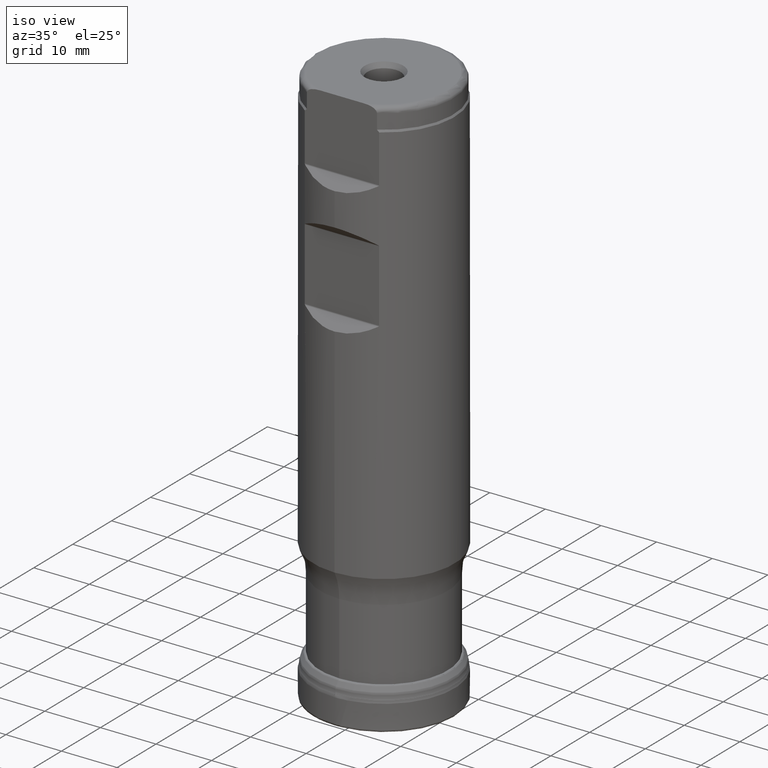
[diagram: clean part render]
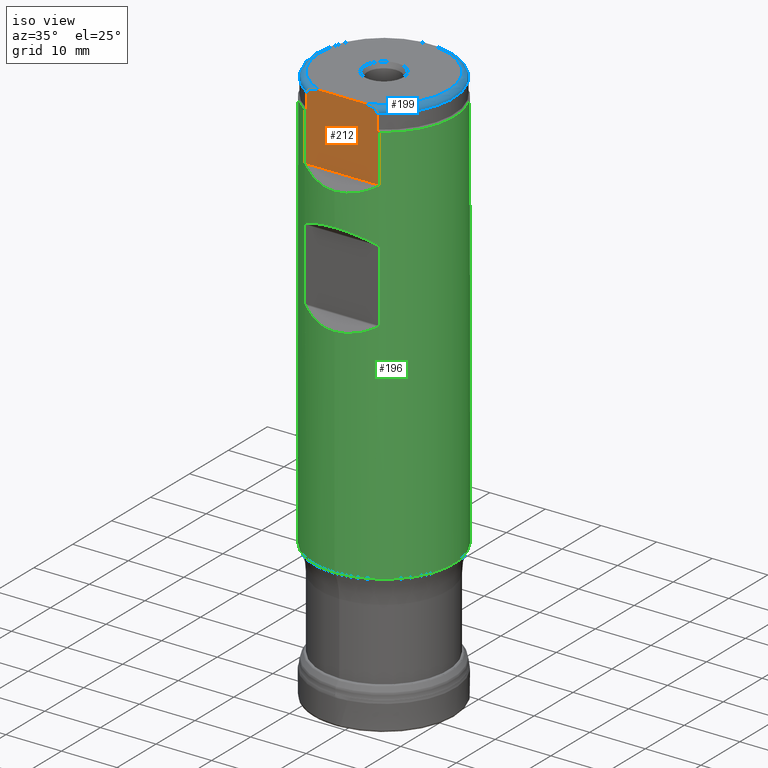
[diagram: same view with three faces highlighted in distinct colors, each labeled with its STEP entity id]
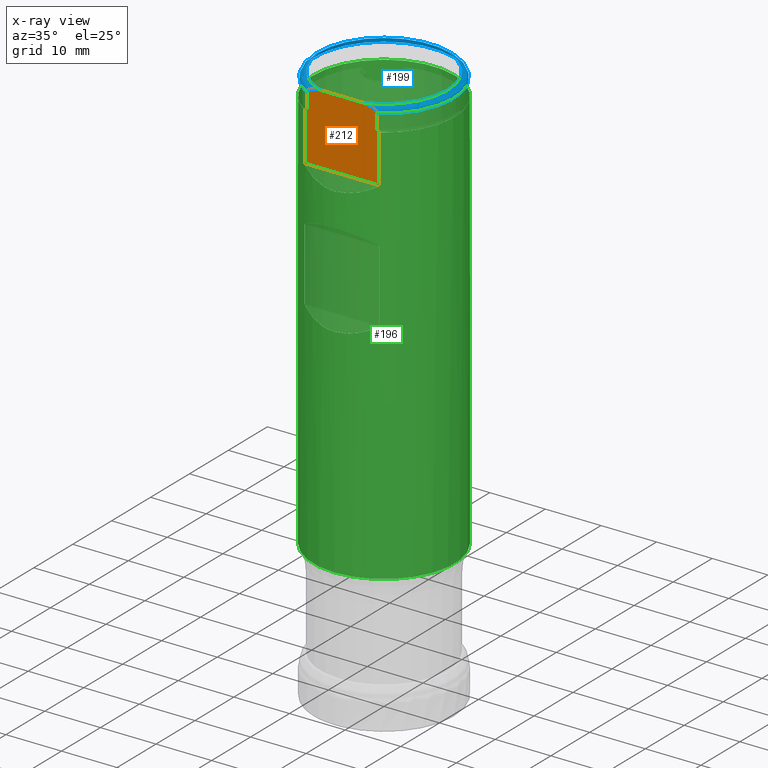
[diagram: x-ray of the same camera — body ghosted, the three highlighted faces saturated]
A machine part, iso view with three faces highlighted in distinct colors.
The next image is the same camera in x-ray (body ghosted, the three faces saturated) — at least one of them is partly hidden behind the body in this view.
Their STEP definitions:

[orange] entity #212 — the highlighted planar face has unit normal (0, 1, -0).
#164=FACE_OUTER_BOUND('',#408,.T.);
#212=ADVANCED_FACE('',(#164),#244,.F.);
#244=PLANE('',#857);
#249=LINE('',#1289,#268);
#250=LINE('',#1316,#269);
#251=LINE('',#1321,#270);
#254=LINE('',#1431,#273);
#255=LINE('',#1435,#274);
#256=LINE('',#1478,#275);
#268=VECTOR('',#892,1.);
#269=VECTOR('',#925,1.);
#270=VECTOR('',#928,1.);
#273=VECTOR('',#945,1.);
#274=VECTOR('',#948,1.);
#275=VECTOR('',#987,1.);
#408=EDGE_LOOP('',(#520,#521,#522,#523,#524,#525,#526,#527,#528,#529));
#520=ORIENTED_EDGE('',*,*,#667,.T.);
#521=ORIENTED_EDGE('',*,*,#695,.T.);
#522=ORIENTED_EDGE('',*,*,#669,.T.);
#523=ORIENTED_EDGE('',*,*,#682,.T.);
#524=ORIENTED_EDGE('',*,*,#687,.T.);
#525=ORIENTED_EDGE('',*,*,#689,.T.);
#526=ORIENTED_EDGE('',*,*,#656,.F.);
#527=ORIENTED_EDGE('',*,*,#688,.T.);
#528=ORIENTED_EDGE('',*,*,#685,.T.);
#529=ORIENTED_EDGE('',*,*,#683,.T.);
#595=VERTEX_POINT('',#1287);
#596=VERTEX_POINT('',#1288);
#607=VERTEX_POINT('',#1317);
#608=VERTEX_POINT('',#1318);
#609=VERTEX_POINT('',#1320);
#610=VERTEX_POINT('',#1322);
#622=VERTEX_POINT('',#1423);
#623=VERTEX_POINT('',#1428);
#624=VERTEX_POINT('',#1432);
#625=VERTEX_POINT('',#1434);
#656=EDGE_CURVE('',#596,#595,#249,.T.);
#667=EDGE_CURVE('',#607,#608,#250,.T.);
#669=EDGE_CURVE('',#610,#609,#251,.T.);
#682=EDGE_CURVE('',#609,#622,#791,.T.);
#683=EDGE_CURVE('',#623,#607,#792,.T.);
#685=EDGE_CURVE('',#624,#623,#254,.T.);
#687=EDGE_CURVE('',#622,#625,#255,.T.);
#688=EDGE_CURVE('',#596,#624,#793,.T.);
#689=EDGE_CURVE('',#625,#595,#794,.T.);
#695=EDGE_CURVE('',#608,#610,#256,.T.);
#791=B_SPLINE_CURVE_WITH_KNOTS('',3,(#1419,#1420,#1421,#1422),
 .UNSPECIFIED.,.F.,.F.,(4,4),(0.,1.),.UNSPECIFIED.);
#792=B_SPLINE_CURVE_WITH_KNOTS('',3,(#1424,#1425,#1426,#1427),
 .UNSPECIFIED.,.F.,.F.,(4,4),(0.,1.),.UNSPECIFIED.);
#793=B_SPLINE_CURVE_WITH_KNOTS('',3,(#1437,#1438,#1439,#1440,#1441,#1442,
#1443,#1444),.UNSPECIFIED.,.F.,.F.,(4,2,2,4),(0.,0.499999999999998,0.749999999999999,
1.),.UNSPECIFIED.);
#794=B_SPLINE_CURVE_WITH_KNOTS('',3,(#1445,#1446,#1447,#1448,#1449,#1450,
#1451,#1452),.UNSPECIFIED.,.F.,.F.,(4,2,2,4),(0.,0.25,0.5,1.),
 .UNSPECIFIED.);
#857=AXIS2_PLACEMENT_3D('',#1479,#988,#989);
#892=DIRECTION('',(1.,-1.37230767120917E-30,-1.17145536458252E-15));
#925=DIRECTION('',(0.,-1.17145536458252E-15,-1.));
#928=DIRECTION('',(0.,1.17145536458252E-15,1.));
#945=DIRECTION('',(0.,-1.17145536458252E-15,-1.));
#948=DIRECTION('',(0.,1.17145536458252E-15,1.));
#987=DIRECTION('',(1.,-1.37230767120917E-30,-1.17145536458252E-15));
#988=DIRECTION('',(0.,1.,-1.17145536458252E-15));
#989=DIRECTION('',(-1.17267306976032E-15,-1.17093834628434E-15,-1.));
#1287=CARTESIAN_POINT('',(3.96459014276549,-10.7949999999999,101.6));
#1288=CARTESIAN_POINT('',(-3.96459014274939,-10.7949999999999,101.6));
#1289=CARTESIAN_POINT('',(19.,-10.7949999999999,101.6));
#1316=CARTESIAN_POINT('',(-6.69014013306148,-10.795,1.26458606606684E-14));
#1317=CARTESIAN_POINT('',(-6.69014013306148,-10.7949999999999,97.6));
#1318=CARTESIAN_POINT('',(-6.69014013306148,-10.7949999999999,89.024264068712));
#1320=CARTESIAN_POINT('',(6.69014013306149,-10.7949999999999,97.6));
#1321=CARTESIAN_POINT('',(6.69014013306148,-10.795,1.26458606606684E-14));
#1322=CARTESIAN_POINT('',(6.69014013306148,-10.7949999999999,89.0242640687119));
#1419=CARTESIAN_POINT('',(6.69014013306149,-10.7949999999999,97.6));
#1420=CARTESIAN_POINT('',(6.56213395392069,-10.7949999999999,97.7167946785186));
#1421=CARTESIAN_POINT('',(6.43287534987464,-10.7949999999999,97.8323137805486));
#1422=CARTESIAN_POINT('',(6.30221984700629,-10.7949999999999,97.9464101615138));
#1423=CARTESIAN_POINT('',(6.30221984700628,-10.7949999999999,97.9464101615138));
#1424=CARTESIAN_POINT('',(-6.30221984700628,-10.7949999999999,97.9464101615138));
#1425=CARTESIAN_POINT('',(-6.43289266558068,-10.7949999999999,97.8322986594144));
#1426=CARTESIAN_POINT('',(-6.56215030852007,-10.7949999999999,97.716779756347));
#1427=CARTESIAN_POINT('',(-6.69014013306149,-10.7949999999999,97.6));
#1428=CARTESIAN_POINT('',(-6.30221984700628,-10.7949999999999,97.9464101615138));
#1431=CARTESIAN_POINT('',(-6.30221984700628,-10.795,1.26458606606684E-14));
#1432=CARTESIAN_POINT('',(-6.30221984700629,-10.7949999999999,100.6));
#1434=CARTESIAN_POINT('',(6.30221984700628,-10.7949999999999,100.6));
#1435=CARTESIAN_POINT('',(6.30221984700628,-10.795,1.26458606606684E-14));
#1437=CARTESIAN_POINT('',(-3.96459014274939,-10.7949999999999,101.6));
#1438=CARTESIAN_POINT('',(-4.42074173003042,-10.7949999999999,101.6));
#1439=CARTESIAN_POINT('',(-4.87318840292044,-10.7949999999999,101.569142099305));
#1440=CARTESIAN_POINT('',(-5.53533403752101,-10.7949999999999,101.385225208593));
#1441=CARTESIAN_POINT('',(-5.75555843413988,-10.7949999999999,101.299874834573));
#1442=CARTESIAN_POINT('',(-6.13560345866922,-10.7949999999999,101.033188896451));
#1443=CARTESIAN_POINT('',(-6.30221984700631,-10.7949999999999,100.83301520881));
#1444=CARTESIAN_POINT('',(-6.30221984700631,-10.7949999999999,100.6));
#1445=CARTESIAN_POINT('',(6.3022198470063,-10.7949999999999,100.6));
#1446=CARTESIAN_POINT('',(6.3022198470063,-10.7949999999999,100.832144066048));
#1447=CARTESIAN_POINT('',(6.13620306695791,-10.7949999999999,101.032165283004));
#1448=CARTESIAN_POINT('',(5.75958150283749,-10.7949999999999,101.297647270539));
#1449=CARTESIAN_POINT('',(5.54206939075321,-10.7949999999999,101.382743883684));
#1450=CARTESIAN_POINT('',(4.88212460634037,-10.7949999999999,101.567850502025));
#1451=CARTESIAN_POINT('',(4.41959321494581,-10.7949999999999,101.599999999999));
#1452=CARTESIAN_POINT('',(3.96459014276549,-10.7949999999999,101.6));
#1478=CARTESIAN_POINT('',(19.,-10.7949999999999,89.0242640687119));
#1479=CARTESIAN_POINT('',(19.,-10.7949999999999,101.6));

[blue] entity #199 — the highlighted toroidal blend (fillet) surface has major radius 11.5 mm and minor (blend) radius 1 mm.
#154=TOROIDAL_SURFACE('',#839,11.5,1.);
#163=FACE_OUTER_BOUND('',#385,.T.);
#199=ADVANCED_FACE('',(#163),#154,.T.);
#385=EDGE_LOOP('',(#494,#495,#496,#497));
#494=ORIENTED_EDGE('',*,*,#688,.F.);
#495=ORIENTED_EDGE('',*,*,#655,.F.);
#496=ORIENTED_EDGE('',*,*,#689,.F.);
#497=ORIENTED_EDGE('',*,*,#686,.F.);
#595=VERTEX_POINT('',#1287);
#596=VERTEX_POINT('',#1288);
#624=VERTEX_POINT('',#1432);
#625=VERTEX_POINT('',#1434);
#655=EDGE_CURVE('',#595,#596,#723,.T.);
#686=EDGE_CURVE('',#624,#625,#737,.T.);
#688=EDGE_CURVE('',#596,#624,#793,.T.);
#689=EDGE_CURVE('',#625,#595,#794,.T.);
#723=CIRCLE('',#812,11.5);
#737=CIRCLE('',#837,12.5);
#793=B_SPLINE_CURVE_WITH_KNOTS('',3,(#1437,#1438,#1439,#1440,#1441,#1442,
#1443,#1444),.UNSPECIFIED.,.F.,.F.,(4,2,2,4),(0.,0.499999999999998,0.749999999999999,
1.),.UNSPECIFIED.);
#794=B_SPLINE_CURVE_WITH_KNOTS('',3,(#1445,#1446,#1447,#1448,#1449,#1450,
#1451,#1452),.UNSPECIFIED.,.F.,.F.,(4,2,2,4),(0.,0.25,0.5,1.),
 .UNSPECIFIED.);
#812=AXIS2_PLACEMENT_3D('',#1286,#890,#891);
#837=AXIS2_PLACEMENT_3D('',#1433,#946,#947);
#839=AXIS2_PLACEMENT_3D('',#1453,#951,#952);
#890=DIRECTION('',(0.,1.17145536458252E-15,1.));
#891=DIRECTION('',(0.,-1.,1.20676415720126E-15));
#946=DIRECTION('',(0.,-1.17145536458252E-15,-1.));
#947=DIRECTION('',(0.,-1.,1.11022302462516E-15));
#951=DIRECTION('',(0.,1.17145536458252E-15,1.));
#952=DIRECTION('',(0.,-1.,1.11022302462516E-15));
#1286=CARTESIAN_POINT('',(0.,1.19019865041584E-13,101.6));
#1287=CARTESIAN_POINT('',(3.96459014276549,-10.7949999999999,101.6));
#1288=CARTESIAN_POINT('',(-3.96459014274939,-10.7949999999999,101.6));
#1432=CARTESIAN_POINT('',(-6.30221984700629,-10.7949999999999,100.6));
#1433=CARTESIAN_POINT('',(0.,1.17848409677002E-13,100.6));
#1434=CARTESIAN_POINT('',(6.30221984700628,-10.7949999999999,100.6));
#1437=CARTESIAN_POINT('',(-3.96459014274939,-10.7949999999999,101.6));
#1438=CARTESIAN_POINT('',(-4.42074173003042,-10.7949999999999,101.6));
#1439=CARTESIAN_POINT('',(-4.87318840292044,-10.7949999999999,101.569142099305));
#1440=CARTESIAN_POINT('',(-5.53533403752101,-10.7949999999999,101.385225208593));
#1441=CARTESIAN_POINT('',(-5.75555843413988,-10.7949999999999,101.299874834573));
#1442=CARTESIAN_POINT('',(-6.13560345866922,-10.7949999999999,101.033188896451));
#1443=CARTESIAN_POINT('',(-6.30221984700631,-10.7949999999999,100.83301520881));
#1444=CARTESIAN_POINT('',(-6.30221984700631,-10.7949999999999,100.6));
#1445=CARTESIAN_POINT('',(6.3022198470063,-10.7949999999999,100.6));
#1446=CARTESIAN_POINT('',(6.3022198470063,-10.7949999999999,100.832144066048));
#1447=CARTESIAN_POINT('',(6.13620306695791,-10.7949999999999,101.032165283004));
#1448=CARTESIAN_POINT('',(5.75958150283749,-10.7949999999999,101.297647270539));
#1449=CARTESIAN_POINT('',(5.54206939075321,-10.7949999999999,101.382743883684));
#1450=CARTESIAN_POINT('',(4.88212460634037,-10.7949999999999,101.567850502025));
#1451=CARTESIAN_POINT('',(4.41959321494581,-10.7949999999999,101.599999999999));
#1452=CARTESIAN_POINT('',(3.96459014276549,-10.7949999999999,101.6));
#1453=CARTESIAN_POINT('',(0.,1.17848409677002E-13,100.6));

[green] entity #196 — the highlighted cylindrical surface (bore or boss wall) has radius 12.7 mm, axis along (0, 0, 1).
#172=ELLIPSE('',#830,17.9605122421383,12.7);
#173=ELLIPSE('',#831,17.9605122421383,12.7);
#174=ELLIPSE('',#832,17.9605122421383,12.7);
#176=CYLINDRICAL_SURFACE('',#834,12.7);
#196=ADVANCED_FACE('',(#299,#300,#301),#176,.T.);
#250=LINE('',#1316,#269);
#251=LINE('',#1321,#270);
#252=LINE('',#1383,#271);
#253=LINE('',#1415,#272);
#269=VECTOR('',#925,1.);
#270=VECTOR('',#928,1.);
#271=VECTOR('',#933,1.);
#272=VECTOR('',#936,1.);
#299=FACE_BOUND('',#380,.T.);
#300=FACE_BOUND('',#381,.T.);
#301=FACE_BOUND('',#382,.T.);
#380=EDGE_LOOP('',(#471,#472,#473,#474,#475,#476));
#381=EDGE_LOOP('',(#477,#478,#479,#480,#481,#482,#483,#484));
#382=EDGE_LOOP('',(#485));
#471=ORIENTED_EDGE('',*,*,#667,.F.);
#472=ORIENTED_EDGE('',*,*,#668,.F.);
#473=ORIENTED_EDGE('',*,*,#669,.F.);
#474=ORIENTED_EDGE('',*,*,#670,.F.);
#475=ORIENTED_EDGE('',*,*,#671,.F.);
#476=ORIENTED_EDGE('',*,*,#672,.F.);
#477=ORIENTED_EDGE('',*,*,#673,.F.);
#478=ORIENTED_EDGE('',*,*,#674,.F.);
#479=ORIENTED_EDGE('',*,*,#675,.F.);
#480=ORIENTED_EDGE('',*,*,#676,.F.);
#481=ORIENTED_EDGE('',*,*,#677,.F.);
#482=ORIENTED_EDGE('',*,*,#678,.F.);
#483=ORIENTED_EDGE('',*,*,#679,.F.);
#484=ORIENTED_EDGE('',*,*,#680,.F.);
#485=ORIENTED_EDGE('',*,*,#681,.T.);
#607=VERTEX_POINT('',#1317);
#608=VERTEX_POINT('',#1318);
#609=VERTEX_POINT('',#1320);
#610=VERTEX_POINT('',#1322);
#611=VERTEX_POINT('',#1336);
#612=VERTEX_POINT('',#1338);
#613=VERTEX_POINT('',#1365);
#614=VERTEX_POINT('',#1366);
#615=VERTEX_POINT('',#1368);
#616=VERTEX_POINT('',#1382);
#617=VERTEX_POINT('',#1384);
#618=VERTEX_POINT('',#1398);
#619=VERTEX_POINT('',#1400);
#620=VERTEX_POINT('',#1414);
#621=VERTEX_POINT('',#1417);
#667=EDGE_CURVE('',#607,#608,#250,.T.);
#668=EDGE_CURVE('',#609,#607,#734,.T.);
#669=EDGE_CURVE('',#610,#609,#251,.T.);
#670=EDGE_CURVE('',#611,#610,#785,.T.);
#671=EDGE_CURVE('',#612,#611,#172,.T.);
#672=EDGE_CURVE('',#608,#612,#786,.T.);
#673=EDGE_CURVE('',#613,#614,#787,.T.);
#674=EDGE_CURVE('',#615,#613,#173,.T.);
#675=EDGE_CURVE('',#616,#615,#788,.T.);
#676=EDGE_CURVE('',#617,#616,#252,.T.);
#677=EDGE_CURVE('',#618,#617,#789,.T.);
#678=EDGE_CURVE('',#619,#618,#174,.T.);
#679=EDGE_CURVE('',#620,#619,#790,.T.);
#680=EDGE_CURVE('',#614,#620,#253,.T.);
#681=EDGE_CURVE('',#621,#621,#735,.T.);
#734=CIRCLE('',#829,12.7);
#735=CIRCLE('',#833,12.7);
#785=B_SPLINE_CURVE_WITH_KNOTS('',3,(#1323,#1324,#1325,#1326,#1327,#1328,
#1329,#1330,#1331,#1332,#1333,#1334,#1335),.UNSPECIFIED.,.F.,.F.,(4,3,3,
3,4),(0.,0.454256249547534,0.701388974586829,0.909298857750837,1.),
 .UNSPECIFIED.);
#786=B_SPLINE_CURVE_WITH_KNOTS('',3,(#1339,#1340,#1341,#1342,#1343,#1344,
#1345,#1346,#1347,#1348,#1349,#1350,#1351),.UNSPECIFIED.,.F.,.F.,(4,3,3,
3,4),(0.,0.198540334836324,0.440045943310677,0.804340831427684,1.),
 .UNSPECIFIED.);
#787=B_SPLINE_CURVE_WITH_KNOTS('',3,(#1352,#1353,#1354,#1355,#1356,#1357,
#1358,#1359,#1360,#1361,#1362,#1363,#1364),.UNSPECIFIED.,.F.,.F.,(4,3,3,
3,4),(0.,0.454256249547571,0.701388974586928,0.909298857750982,1.),
 .UNSPECIFIED.);
#788=B_SPLINE_CURVE_WITH_KNOTS('',3,(#1369,#1370,#1371,#1372,#1373,#1374,
#1375,#1376,#1377,#1378,#1379,#1380,#1381),.UNSPECIFIED.,.F.,.F.,(4,3,3,
3,4),(0.,0.198540334836334,0.4400459433107,0.804340831427749,1.),
 .UNSPECIFIED.);
#789=B_SPLINE_CURVE_WITH_KNOTS('',3,(#1385,#1386,#1387,#1388,#1389,#1390,
#1391,#1392,#1393,#1394,#1395,#1396,#1397),.UNSPECIFIED.,.F.,.F.,(4,3,3,
3,4),(0.,0.454256249547614,0.7013889745869,0.909298857750889,1.),
 .UNSPECIFIED.);
#790=B_SPLINE_CURVE_WITH_KNOTS('',3,(#1401,#1402,#1403,#1404,#1405,#1406,
#1407,#1408,#1409,#1410,#1411,#1412,#1413),.UNSPECIFIED.,.F.,.F.,(4,3,3,
3,4),(0.,0.198540334836322,0.440045943310672,0.804340831427675,1.),
 .UNSPECIFIED.);
#829=AXIS2_PLACEMENT_3D('',#1319,#926,#927);
#830=AXIS2_PLACEMENT_3D('',#1337,#929,#930);
#831=AXIS2_PLACEMENT_3D('',#1367,#931,#932);
#832=AXIS2_PLACEMENT_3D('',#1399,#934,#935);
#833=AXIS2_PLACEMENT_3D('',#1416,#937,#938);
#834=AXIS2_PLACEMENT_3D('',#1418,#939,#940);
#925=DIRECTION('',(0.,-1.17145536458252E-15,-1.));
#926=DIRECTION('',(0.,1.17145536458252E-15,1.));
#927=DIRECTION('',(0.,-1.,1.09273919746571E-15));
#928=DIRECTION('',(0.,1.17145536458252E-15,1.));
#929=DIRECTION('',(8.28344032153662E-16,-0.707106781186547,0.707106781186548));
#930=DIRECTION('',(-8.28344032153662E-16,0.707106781186548,0.707106781186547));
#931=DIRECTION('',(-8.28344032153662E-16,-0.707106781186549,-0.707106781186546));
#932=DIRECTION('',(-8.28344032153661E-16,-0.707106781186546,0.707106781186549));
#933=DIRECTION('',(0.,1.17145536458252E-15,1.));
#934=DIRECTION('',(8.28344032153662E-16,-0.707106781186547,0.707106781186548));
#935=DIRECTION('',(-8.28344032153662E-16,0.707106781186548,0.707106781186547));
#936=DIRECTION('',(0.,-1.17145536458252E-15,-1.));
#937=DIRECTION('',(0.,1.17145536458252E-15,1.));
#938=DIRECTION('',(0.,-1.,1.09273919746571E-15));
#939=DIRECTION('',(0.,1.17145536458252E-15,1.));
#940=DIRECTION('',(0.,-1.,1.17145536458252E-15));
#1316=CARTESIAN_POINT('',(-6.69014013306148,-10.795,1.26458606606684E-14));
#1317=CARTESIAN_POINT('',(-6.69014013306148,-10.7949999999999,97.6));
#1318=CARTESIAN_POINT('',(-6.69014013306148,-10.7949999999999,89.024264068712));
#1319=CARTESIAN_POINT('',(0.,1.14334043583254E-13,97.6));
#1320=CARTESIAN_POINT('',(6.69014013306149,-10.7949999999999,97.6));
#1321=CARTESIAN_POINT('',(6.69014013306148,-10.795,1.26458606606684E-14));
#1322=CARTESIAN_POINT('',(6.69014013306148,-10.7949999999999,89.0242640687119));
#1323=CARTESIAN_POINT('',(6.54623440172736,-10.8828679656439,88.812132034356));
#1324=CARTESIAN_POINT('',(6.57882992150621,-10.8632611934592,88.8317388065407));
#1325=CARTESIAN_POINT('',(6.61005443367797,-10.8442651564323,88.8560249273033));
#1326=CARTESIAN_POINT('',(6.6357244251051,-10.8285345894106,88.8864374204922));
#1327=CARTESIAN_POINT('',(6.64977562370313,-10.8199240169486,88.9030845620728));
#1328=CARTESIAN_POINT('',(6.66233211686898,-10.8121900792118,88.9219029165548));
#1329=CARTESIAN_POINT('',(6.67178984893818,-10.8063509202507,88.942522348887));
#1330=CARTESIAN_POINT('',(6.67973811508599,-10.8014436983964,88.9598508939117));
#1331=CARTESIAN_POINT('',(6.68559716064126,-10.7978146344364,88.9788661811409));
#1332=CARTESIAN_POINT('',(6.68832196021573,-10.7961265904256,88.9982893685326));
#1333=CARTESIAN_POINT('',(6.6895244358762,-10.795381643217,89.0068609751587));
#1334=CARTESIAN_POINT('',(6.69014013306154,-10.7949999999999,89.0155765296927));
#1335=CARTESIAN_POINT('',(6.69014013306155,-10.7949999999999,89.0242640687119));
#1336=CARTESIAN_POINT('',(6.54623440172736,-10.8828679656439,88.812132034356));
#1337=CARTESIAN_POINT('',(0.,1.16788242572055E-13,99.695));
#1338=CARTESIAN_POINT('',(-6.54623440172736,-10.8828679656439,88.812132034356));
#1339=CARTESIAN_POINT('',(-6.69014013306148,-10.7949999999999,89.024264068712));
#1340=CARTESIAN_POINT('',(-6.69014013306149,-10.7949999999999,89.005472320337));
#1341=CARTESIAN_POINT('',(-6.68715871003454,-10.7968490069086,88.9864471221994));
#1342=CARTESIAN_POINT('',(-6.68177413185822,-10.8001802971445,88.9687542244657));
#1343=CARTESIAN_POINT('',(-6.6752297449279,-10.8042291291174,88.9472503731153));
#1344=CARTESIAN_POINT('',(-6.66505161325051,-10.81051748823,88.9270775029031));
#1345=CARTESIAN_POINT('',(-6.6529640333882,-10.8179512649319,88.9091814966291));
#1346=CARTESIAN_POINT('',(-6.63477792900557,-10.8291355913724,88.8822564510999));
#1347=CARTESIAN_POINT('',(-6.61187730075075,-10.8431496607049,88.8594741204815));
#1348=CARTESIAN_POINT('',(-6.58745474587888,-10.85796665914,88.8403749844226));
#1349=CARTESIAN_POINT('',(-6.57422829207235,-10.8659910589778,88.8300315194512));
#1350=CARTESIAN_POINT('',(-6.56040907431856,-10.8743416534953,88.8206583464992));
#1351=CARTESIAN_POINT('',(-6.54623440172977,-10.8828679656427,88.8121320343519));
#1352=CARTESIAN_POINT('',(-6.54623440172736,-10.8828679656439,79.2691929656441));
#1353=CARTESIAN_POINT('',(-6.57882992150621,-10.8632611934593,79.2495861934594));
#1354=CARTESIAN_POINT('',(-6.61005443367797,-10.8442651564323,79.2253000726967));
#1355=CARTESIAN_POINT('',(-6.6357244251051,-10.8285345894106,79.1948875795078));
#1356=CARTESIAN_POINT('',(-6.64977562370314,-10.8199240169486,79.1782404379272));
#1357=CARTESIAN_POINT('',(-6.66233211686899,-10.8121900792119,79.1594220834452));
#1358=CARTESIAN_POINT('',(-6.67178984893819,-10.8063509202507,79.138802651113));
#1359=CARTESIAN_POINT('',(-6.679738115086,-10.8014436983964,79.1214741060883));
#1360=CARTESIAN_POINT('',(-6.68559716064127,-10.7978146344364,79.1024588188591));
#1361=CARTESIAN_POINT('',(-6.68832196021573,-10.7961265904256,79.0830356314674));
#1362=CARTESIAN_POINT('',(-6.6895244358762,-10.795381643217,79.0744640248413));
#1363=CARTESIAN_POINT('',(-6.69014013306154,-10.7949999999999,79.0657484703073));
#1364=CARTESIAN_POINT('',(-6.69014013306155,-10.7949999999999,79.0570609312881));
#1365=CARTESIAN_POINT('',(-6.54623440172736,-10.8828679656439,79.2691929656441));
#1366=CARTESIAN_POINT('',(-6.69014013306148,-10.7949999999999,79.0570609312881));
#1367=CARTESIAN_POINT('',(0.,8.01115272853339E-14,68.386325));
#1368=CARTESIAN_POINT('',(6.54623440172736,-10.8828679656439,79.269192965644));
#1369=CARTESIAN_POINT('',(6.69014013306148,-10.7949999999999,79.0570609312881));
#1370=CARTESIAN_POINT('',(6.69014013306148,-10.7949999999999,79.075852679663));
#1371=CARTESIAN_POINT('',(6.68715871003454,-10.7968490069086,79.0948778778007));
#1372=CARTESIAN_POINT('',(6.68177413185822,-10.8001802971445,79.1125707755344));
#1373=CARTESIAN_POINT('',(6.6752297449279,-10.8042291291174,79.1340746268848));
#1374=CARTESIAN_POINT('',(6.6650516132505,-10.8105174882301,79.1542474970969));
#1375=CARTESIAN_POINT('',(6.6529640333882,-10.8179512649319,79.1721435033709));
#1376=CARTESIAN_POINT('',(6.63477792900556,-10.8291355913724,79.1990685489001));
#1377=CARTESIAN_POINT('',(6.61187730075073,-10.8431496607049,79.2218508795185));
#1378=CARTESIAN_POINT('',(6.58745474587886,-10.85796665914,79.2409500155775));
#1379=CARTESIAN_POINT('',(6.57422829207234,-10.8659910589779,79.2512934805488));
#1380=CARTESIAN_POINT('',(6.56040907431855,-10.8743416534953,79.2606666535008));
#1381=CARTESIAN_POINT('',(6.54623440172977,-10.8828679656427,79.2691929656481));
#1382=CARTESIAN_POINT('',(6.69014013306148,-10.7949999999999,79.0570609312881));
#1383=CARTESIAN_POINT('',(6.69014013306148,-10.795,1.26458606606684E-14));
#1384=CARTESIAN_POINT('',(6.69014013306148,-10.7949999999999,66.1991890687119));
#1385=CARTESIAN_POINT('',(6.54623440172735,-10.882867965644,65.987057034356));
#1386=CARTESIAN_POINT('',(6.5788299215062,-10.8632611934593,66.0066638065407));
#1387=CARTESIAN_POINT('',(6.61005443367798,-10.8442651564323,66.0309499273033));
#1388=CARTESIAN_POINT('',(6.63572442510511,-10.8285345894106,66.0613624204922));
#1389=CARTESIAN_POINT('',(6.64977562370314,-10.8199240169486,66.0780095620728));
#1390=CARTESIAN_POINT('',(6.66233211686899,-10.8121900792119,66.0968279165549));
#1391=CARTESIAN_POINT('',(6.67178984893819,-10.8063509202507,66.117447348887));
#1392=CARTESIAN_POINT('',(6.679738115086,-10.8014436983964,66.1347758939117));
#1393=CARTESIAN_POINT('',(6.68559716064126,-10.7978146344364,66.1537911811409));
#1394=CARTESIAN_POINT('',(6.68832196021573,-10.7961265904256,66.1732143685326));
#1395=CARTESIAN_POINT('',(6.6895244358762,-10.795381643217,66.1817859751587));
#1396=CARTESIAN_POINT('',(6.69014013306154,-10.7949999999999,66.1905015296927));
#1397=CARTESIAN_POINT('',(6.69014013306154,-10.7949999999999,66.1991890687119));
#1398=CARTESIAN_POINT('',(6.54623440172735,-10.882867965644,65.987057034356));
#1399=CARTESIAN_POINT('',(0.,9.00496860163063E-14,76.869925));
#1400=CARTESIAN_POINT('',(-6.54623440172736,-10.882867965644,65.987057034356));
#1401=CARTESIAN_POINT('',(-6.69014013306148,-10.7949999999999,66.199189068712));
#1402=CARTESIAN_POINT('',(-6.69014013306149,-10.7949999999999,66.180397320337));
#1403=CARTESIAN_POINT('',(-6.68715871003454,-10.7968490069086,66.1613721221994));
#1404=CARTESIAN_POINT('',(-6.68177413185822,-10.8001802971445,66.1436792244657));
#1405=CARTESIAN_POINT('',(-6.6752297449279,-10.8042291291174,66.1221753731153));
#1406=CARTESIAN_POINT('',(-6.66505161325051,-10.8105174882301,66.1020025029031));
#1407=CARTESIAN_POINT('',(-6.6529640333882,-10.8179512649319,66.0841064966291));
#1408=CARTESIAN_POINT('',(-6.63477792900557,-10.8291355913724,66.0571814511));
#1409=CARTESIAN_POINT('',(-6.61187730075075,-10.8431496607049,66.0343991204815));
#1410=CARTESIAN_POINT('',(-6.58745474587888,-10.85796665914,66.0152999844226));
#1411=CARTESIAN_POINT('',(-6.57422829207235,-10.8659910589779,66.0049565194512));
#1412=CARTESIAN_POINT('',(-6.56040907431856,-10.8743416534953,65.9955833464992));
#1413=CARTESIAN_POINT('',(-6.54623440172977,-10.8828679656427,65.9870570343519));
#1414=CARTESIAN_POINT('',(-6.69014013306148,-10.7949999999999,66.199189068712));
#1415=CARTESIAN_POINT('',(-6.69014013306148,-10.795,1.26458606606684E-14));
#1416=CARTESIAN_POINT('',(0.,2.92788868002298E-14,24.9936));
#1417=CARTESIAN_POINT('',(0.,-12.7,24.9936));
#1418=CARTESIAN_POINT('',(0.,0.,0.));